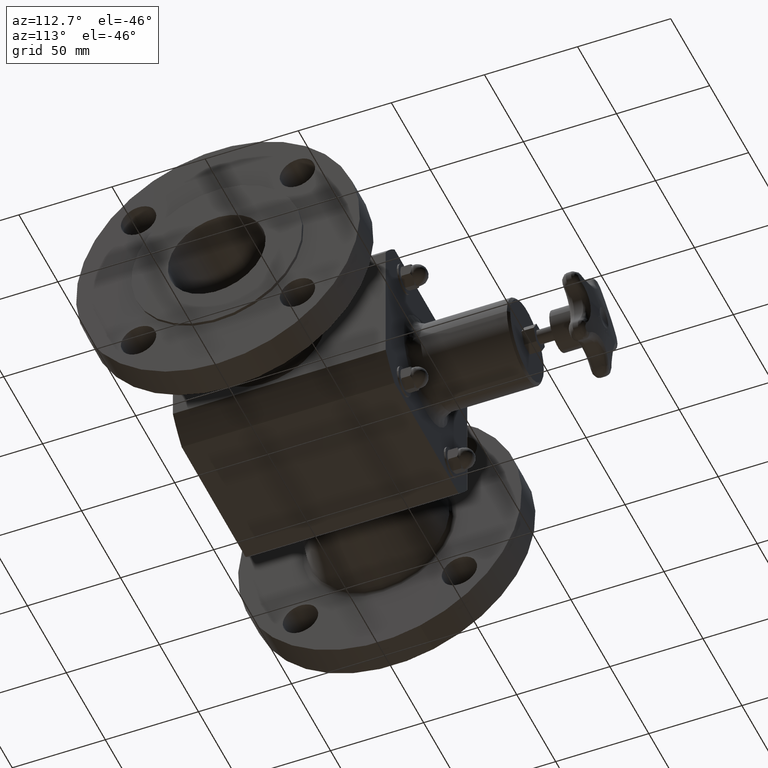
[diagram: clean part render]
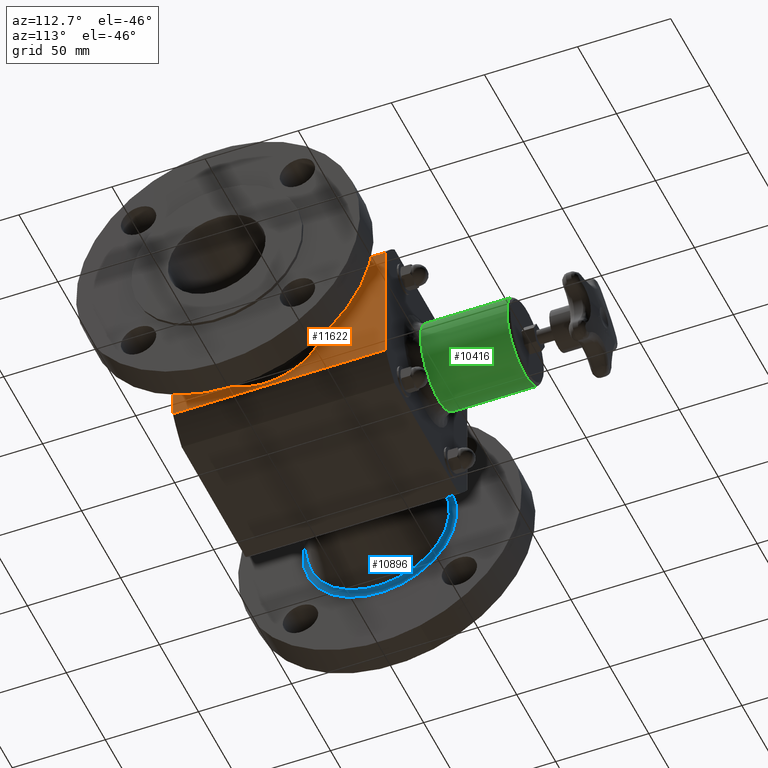
[diagram: same view with three faces highlighted in distinct colors, each labeled with its STEP entity id]
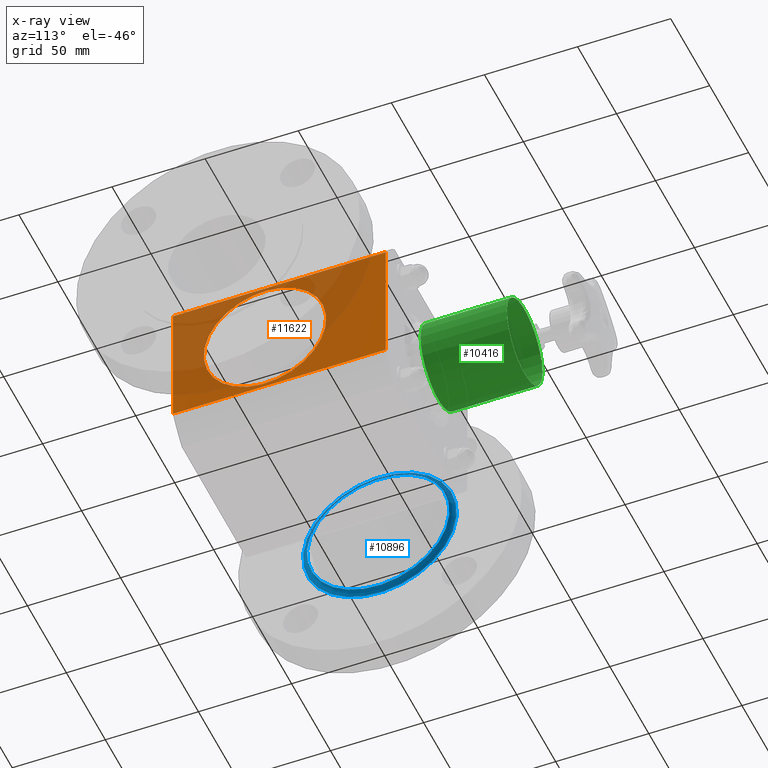
[diagram: x-ray of the same camera — body ghosted, the three highlighted faces saturated]
A machine part, auxiliary view with three faces highlighted in distinct colors.
The next image is the same camera in x-ray (body ghosted, the three faces saturated) — at least one of them is partly hidden behind the body in this view.
Their STEP definitions:

[orange] entity #11622 — the highlighted planar face has unit normal (1, 0, 0).
#7377=CARTESIAN_POINT('',(2.062500000000000,2.312189969977943,1.241240793144173));
#7378=VERTEX_POINT('',#7377);
#7379=CARTESIAN_POINT('',(2.062500000000000,1.948000000000000,4.270303E-016));
#7380=DIRECTION('',(-1.000000000000000,-8.213221E-017,-2.799249E-016));
#7381=DIRECTION('',(2.917253E-016,-0.281539531142331,-0.959549629984899));
#7382=AXIS2_PLACEMENT_3D('',#7379,#7380,#7381);
#7383=CIRCLE('',#7382,1.293566017177982);
#7384=EDGE_CURVE('',#7378,#7378,#7383,.T.);
#11376=CARTESIAN_POINT('',(2.062500000000000,4.697143E-016,1.368107726021602));
#11377=VERTEX_POINT('',#11376);
#11385=CARTESIAN_POINT('',(2.062499999999996,4.500000000000065,1.368107726021603));
#11386=VERTEX_POINT('',#11385);
#11387=CARTESIAN_POINT('',(2.062500000000000,4.697143E-016,1.368107726021602));
#11388=DIRECTION('',(0.0,1.0,0.0));
#11389=VECTOR('',#11388,4.500000000000064);
#11390=LINE('',#11387,#11389);
#11391=EDGE_CURVE('',#11377,#11386,#11390,.T.);
#11570=CARTESIAN_POINT('',(2.062500000000000,4.462197E-016,-1.368107726021602));
#11571=VERTEX_POINT('',#11570);
#11572=CARTESIAN_POINT('',(2.062499999999996,4.500000000000065,-1.368107726021603));
#11573=VERTEX_POINT('',#11572);
#11574=CARTESIAN_POINT('',(2.062500000000000,4.462197E-016,-1.368107726021602));
#11575=DIRECTION('',(0.0,1.0,0.0));
#11576=VECTOR('',#11575,4.500000000000064);
#11577=LINE('',#11574,#11576);
#11578=EDGE_CURVE('',#11571,#11573,#11577,.T.);
#11598=CARTESIAN_POINT('',(2.062500000000000,4.462197E-016,-1.368107726021602));
#11599=DIRECTION('',(1.0,0.0,0.0));
#11600=DIRECTION('',(0.0,0.0,-1.0));
#11601=AXIS2_PLACEMENT_3D('',#11598,#11599,#11600);
#11602=PLANE('',#11601);
#11603=ORIENTED_EDGE('',*,*,#11391,.F.);
#11604=CARTESIAN_POINT('',(2.062500000000000,4.462197E-016,-1.368107726021602));
#11605=DIRECTION('',(0.0,0.0,1.0));
#11606=VECTOR('',#11605,2.736215452043204);
#11607=LINE('',#11604,#11606);
#11608=EDGE_CURVE('',#11571,#11377,#11607,.T.);
#11609=ORIENTED_EDGE('',*,*,#11608,.F.);
#11610=ORIENTED_EDGE('',*,*,#11578,.T.);
#11611=CARTESIAN_POINT('',(2.062499999999996,4.500000000000065,-1.368107726021603));
#11612=DIRECTION('',(0.0,0.0,1.0));
#11613=VECTOR('',#11612,2.736215452043206);
#11614=LINE('',#11611,#11613);
#11615=EDGE_CURVE('',#11573,#11386,#11614,.T.);
#11616=ORIENTED_EDGE('',*,*,#11615,.T.);
#11617=EDGE_LOOP('',(#11603,#11609,#11610,#11616));
#11618=FACE_OUTER_BOUND('',#11617,.T.);
#11619=ORIENTED_EDGE('',*,*,#7384,.T.);
#11620=EDGE_LOOP('',(#11619));
#11621=FACE_BOUND('',#11620,.T.);
#11622=ADVANCED_FACE('',(#11618,#11621),#11602,.T.);

[blue] entity #10896 — the highlighted toroidal blend (fillet) surface has major radius 41.2762 mm and minor (blend) radius 3.048 mm.
#10869=CARTESIAN_POINT('',(-3.627500000006998,1.948000000000031,-5.332906E-016));
#10870=DIRECTION('',(-1.0,6.245005E-016,0.0));
#10871=DIRECTION('',(4.415885E-016,0.707106781186553,0.707106781186542));
#10872=AXIS2_PLACEMENT_3D('',#10869,#10870,#10871);
#10873=TOROIDAL_SURFACE('',#10872,1.625047823470000,0.120000000000000);
#10874=CARTESIAN_POINT('',(-3.747500000006999,1.490484797698298,1.559314037713374));
#10875=VERTEX_POINT('',#10874);
#10876=CARTESIAN_POINT('',(-3.747500000006999,1.948000000000031,-5.332906E-016));
#10877=DIRECTION('',(-1.0,3.122502E-016,3.122502E-016));
#10878=DIRECTION('',(-4.415885E-016,-0.707106781186553,-0.707106781186542));
#10879=AXIS2_PLACEMENT_3D('',#10876,#10877,#10878);
#10880=CIRCLE('',#10879,1.625047823470001);
#10881=EDGE_CURVE('',#10875,#10875,#10880,.T.);
#10882=ORIENTED_EDGE('',*,*,#10881,.F.);
#10883=EDGE_LOOP('',(#10882));
#10884=FACE_OUTER_BOUND('',#10883,.T.);
#10885=CARTESIAN_POINT('',(-3.654977464894999,1.523371927824496,1.447227349856974));
#10886=VERTEX_POINT('',#10885);
#10887=CARTESIAN_POINT('',(-3.654977464894998,1.948000000000031,-5.332906E-016));
#10888=DIRECTION('',(-1.0,3.122502E-016,3.122502E-016));
#10889=DIRECTION('',(-4.415885E-016,-0.707106781186553,-0.707106781186542));
#10890=AXIS2_PLACEMENT_3D('',#10887,#10888,#10889);
#10891=CIRCLE('',#10890,1.508236056410000);
#10892=EDGE_CURVE('',#10886,#10886,#10891,.T.);
#10893=ORIENTED_EDGE('',*,*,#10892,.T.);
#10894=EDGE_LOOP('',(#10893));
#10895=FACE_BOUND('',#10894,.T.);
#10896=ADVANCED_FACE('',(#10884,#10895),#10873,.F.);

[green] entity #10416 — the highlighted cylindrical surface (bore or boss wall) has radius 22.86 mm, axis along (0, -1, 0).
#10382=CARTESIAN_POINT('',(0.899999999999993,6.575000000000064,-3.049037E-016));
#10383=VERTEX_POINT('',#10382);
#10384=CARTESIAN_POINT('',(-6.662211E-015,6.575000000000062,-4.096716E-016));
#10385=DIRECTION('',(0.0,-1.0,0.0));
#10386=DIRECTION('',(1.0,0.0,0.0));
#10387=AXIS2_PLACEMENT_3D('',#10384,#10385,#10386);
#10388=CIRCLE('',#10387,0.900000000000000);
#10389=EDGE_CURVE('',#10383,#10383,#10388,.T.);
#10397=CARTESIAN_POINT('',(-5.752693E-015,5.662500000000063,-4.096716E-016));
#10398=DIRECTION('',(9.967324E-016,-1.0,6.436479E-033));
#10399=DIRECTION('',(1.0,0.0,0.0));
#10400=AXIS2_PLACEMENT_3D('',#10397,#10398,#10399);
#10401=CYLINDRICAL_SURFACE('',#10400,0.900000000000000);
#10402=CARTESIAN_POINT('',(0.899999999999995,4.750000000000063,-3.049037E-016));
#10403=VERTEX_POINT('',#10402);
#10404=CARTESIAN_POINT('',(-4.843174E-015,4.750000000000062,-4.096716E-016));
#10405=DIRECTION('',(0.0,-1.0,0.0));
#10406=DIRECTION('',(1.0,0.0,0.0));
#10407=AXIS2_PLACEMENT_3D('',#10404,#10405,#10406);
#10408=CIRCLE('',#10407,0.900000000000000);
#10409=EDGE_CURVE('',#10403,#10403,#10408,.T.);
#10410=ORIENTED_EDGE('',*,*,#10409,.F.);
#10411=EDGE_LOOP('',(#10410));
#10412=FACE_OUTER_BOUND('',#10411,.T.);
#10413=ORIENTED_EDGE('',*,*,#10389,.T.);
#10414=EDGE_LOOP('',(#10413));
#10415=FACE_BOUND('',#10414,.T.);
#10416=ADVANCED_FACE('',(#10412,#10415),#10401,.T.);